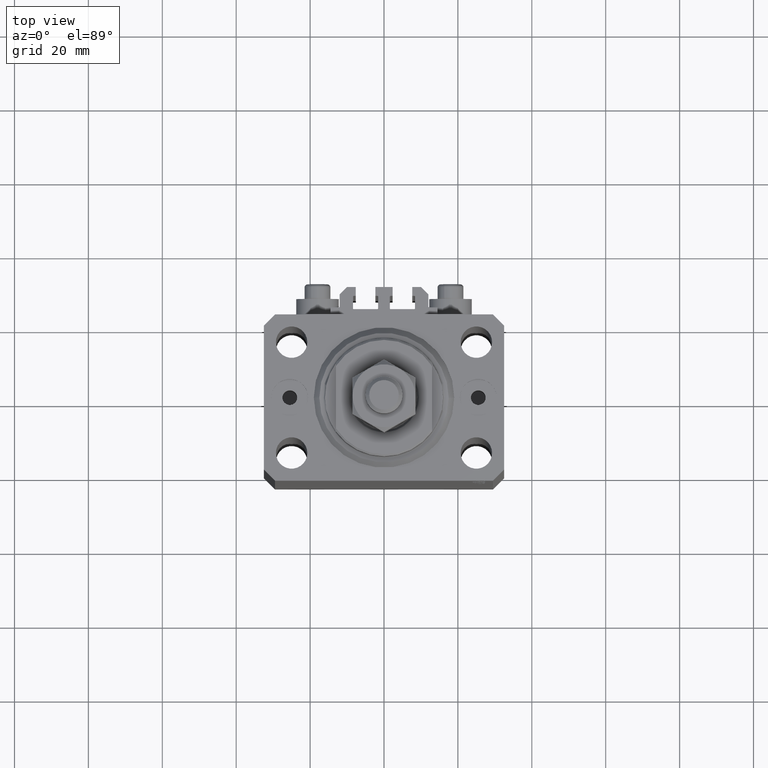
[diagram: clean part render]
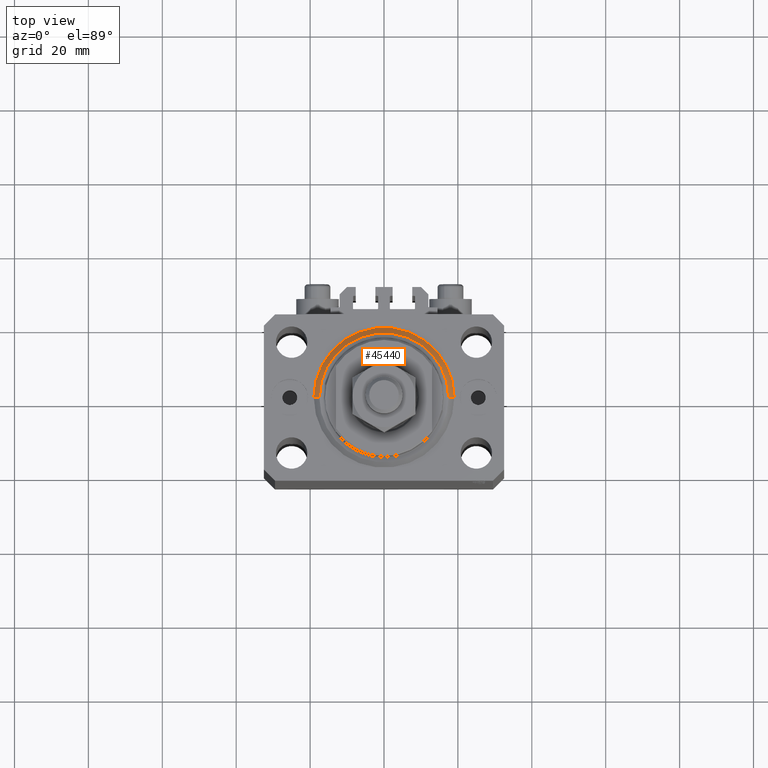
[diagram: same view with one face highlighted and labeled with its STEP entity id]
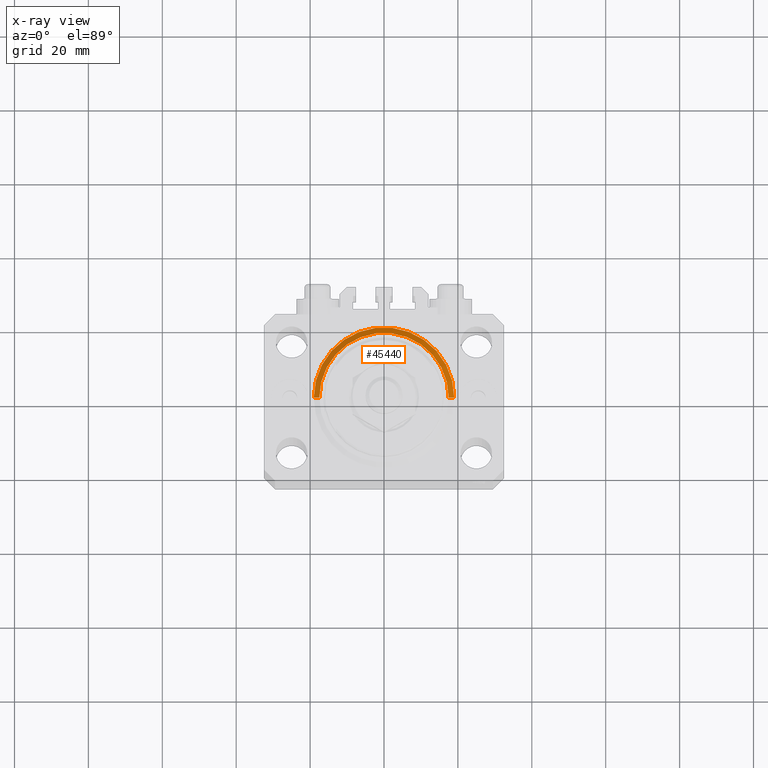
[diagram: x-ray of the same camera — body ghosted, the highlighted face saturated]
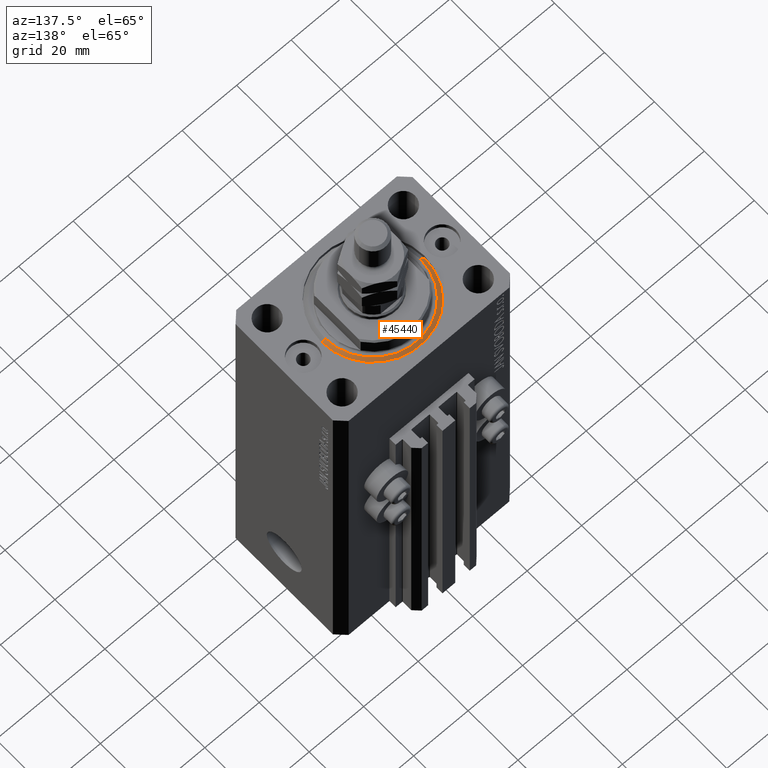
[diagram: same view with one face highlighted and labeled with its STEP entity id]
A machine part, top view. The second image highlights one B-rep face of the part: STEP entity #45440.
The next image is the same camera in x-ray: the body ghosted, the highlighted face saturated — about 0% of this face is hidden behind the body in this view.
A second angle (auxiliary view) of the same face is appended — the face is thin or edge-on in the first view.
In plain terms, the highlighted conical surface has half-angle 45 deg.
Its self-contained STEP definition (entity closure, byte-faithful):
#1468 = ORIENTED_EDGE ( 'NONE', *, *, #1956, .F. ) ;
#1956 = EDGE_CURVE ( 'NONE', #16751, #7639, #5616, .T. ) ;
#3078 = FACE_OUTER_BOUND ( 'NONE', #44077, .T. ) ;
#4042 = AXIS2_PLACEMENT_3D ( 'NONE', #12258, #12010, #42101 ) ;
#5616 = CIRCLE ( 'NONE', #4042, 19.00000000000000000 ) ;
#7639 = VERTEX_POINT ( 'NONE', #43445 ) ;
#12010 = DIRECTION ( 'NONE',  ( -0.000000000000000000, -0.000000000000000000, 1.000000000000000000 ) ) ;
#12258 = CARTESIAN_POINT ( 'NONE',  ( 0.000000000000000000, 0.000000000000000000, 1.500000000000004885 ) ) ;
#14394 = CARTESIAN_POINT ( 'NONE',  ( 0.000000000000000000, 0.000000000000000000, 1.500000000000004885 ) ) ;
#15156 = VERTEX_POINT ( 'NONE', #17725 ) ;
#16751 = VERTEX_POINT ( 'NONE', #36388 ) ;
#17267 = LINE ( 'NONE', #32295, #37920 ) ;
#17441 = DIRECTION ( 'NONE',  ( -0.000000000000000000, -0.000000000000000000, -1.000000000000000000 ) ) ;
#17725 = CARTESIAN_POINT ( 'NONE',  ( -17.49999999999999289, 2.234980408443919215E-15, 0.000000000000000000 ) ) ;
#17765 = DIRECTION ( 'NONE',  ( 0.7071067811865483499, 0.000000000000000000, 0.7071067811865467956 ) ) ;
#18830 = DIRECTION ( 'NONE',  ( -0.000000000000000000, -0.000000000000000000, 1.000000000000000000 ) ) ;
#20061 = VERTEX_POINT ( 'NONE', #46902 ) ;
#22483 = AXIS2_PLACEMENT_3D ( 'NONE', #36417, #17441, #47303 ) ;
#23278 = AXIS2_PLACEMENT_3D ( 'NONE', #14394, #18830, #29432 ) ;
#24823 = CARTESIAN_POINT ( 'NONE',  ( -19.00000000000000000, 2.326828918379970970E-15, 1.500000000000004885 ) ) ;
#25092 = ORIENTED_EDGE ( 'NONE', *, *, #46343, .F. ) ;
#26388 = EDGE_CURVE ( 'NONE', #20061, #16751, #17267, .T. ) ;
#28639 = VECTOR ( 'NONE', #39872, 1000.000000000000000 ) ;
#28711 = ORIENTED_EDGE ( 'NONE', *, *, #26388, .F. ) ;
#29432 = DIRECTION ( 'NONE',  ( 1.000000000000000000, 0.000000000000000000, 0.000000000000000000 ) ) ;
#32295 = CARTESIAN_POINT ( 'NONE',  ( 19.00000000000000000, 0.000000000000000000, 1.500000000000004885 ) ) ;
#34719 = ORIENTED_EDGE ( 'NONE', *, *, #37707, .T. ) ;
#36388 = CARTESIAN_POINT ( 'NONE',  ( 19.00000000000000000, 2.326828918379970970E-15, 1.500000000000004885 ) ) ;
#36417 = CARTESIAN_POINT ( 'NONE',  ( 0.000000000000000000, 0.000000000000000000, 0.000000000000000000 ) ) ;
#37428 = CIRCLE ( 'NONE', #22483, 17.49999999999999289 ) ;
#37707 = EDGE_CURVE ( 'NONE', #15156, #7639, #48270, .T. ) ;
#37920 = VECTOR ( 'NONE', #17765, 1000.000000000000000 ) ;
#39872 = DIRECTION ( 'NONE',  ( -0.7071067811865483499, 8.659560562354943952E-17, 0.7071067811865467956 ) ) ;
#42101 = DIRECTION ( 'NONE',  ( 1.000000000000000000, 0.000000000000000000, 0.000000000000000000 ) ) ;
#43445 = CARTESIAN_POINT ( 'NONE',  ( -19.00000000000000000, 0.000000000000000000, 1.500000000000004885 ) ) ;
#43749 = CONICAL_SURFACE ( 'NONE', #23278, 19.00000000000000000, 0.7853981633974492782 ) ;
#44077 = EDGE_LOOP ( 'NONE', ( #25092, #34719, #1468, #28711 ) ) ;
#45440 = ADVANCED_FACE ( 'NONE', ( #3078 ), #43749, .T. ) ;
#46343 = EDGE_CURVE ( 'NONE', #15156, #20061, #37428, .T. ) ;
#46902 = CARTESIAN_POINT ( 'NONE',  ( 17.49999999999999289, 0.000000000000000000, 0.000000000000000000 ) ) ;
#47303 = DIRECTION ( 'NONE',  ( 1.000000000000000000, 0.000000000000000000, 0.000000000000000000 ) ) ;
#48270 = LINE ( 'NONE', #24823, #28639 ) ;